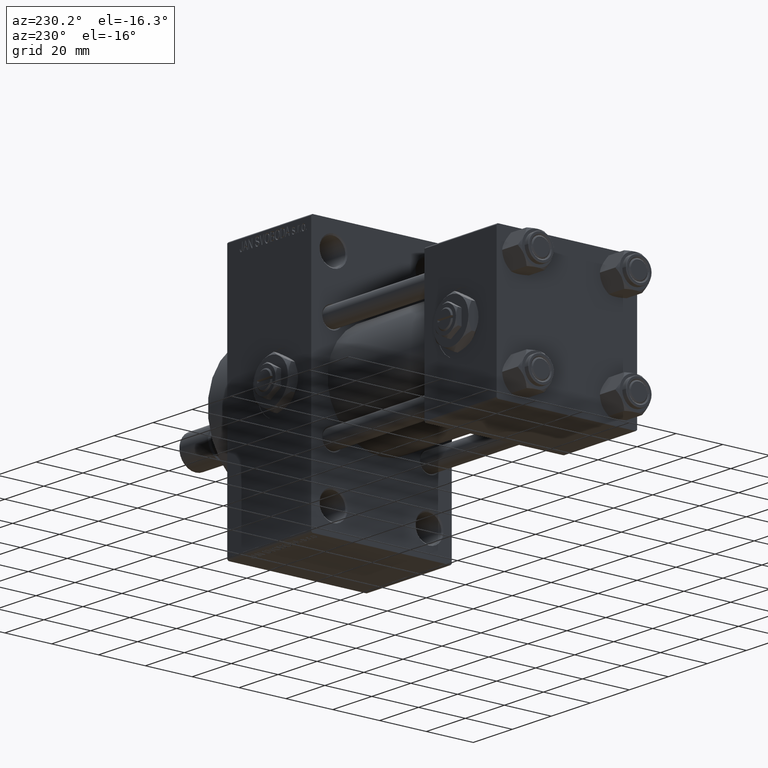
[diagram: clean part render]
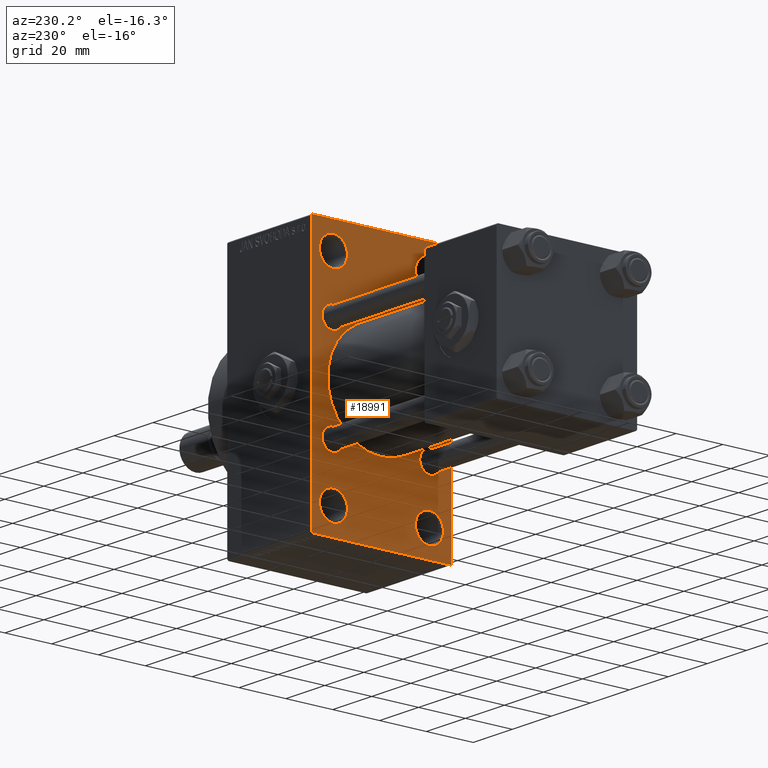
[diagram: same view with one face highlighted and labeled with its STEP entity id]
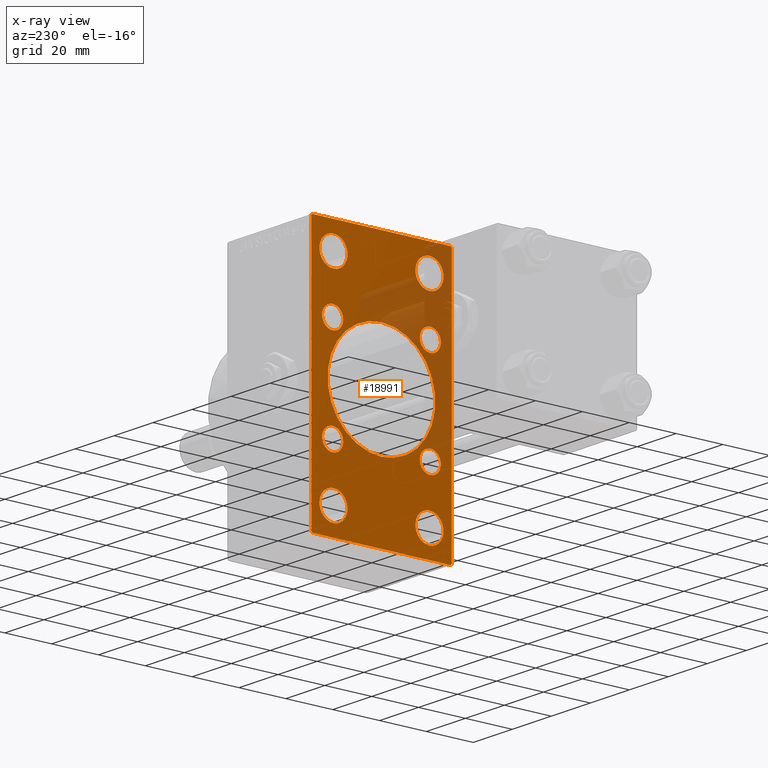
[diagram: x-ray of the same camera — body ghosted, the highlighted face saturated]
A machine part, auxiliary view. The second image highlights one B-rep face of the part: STEP entity #18991.
The next image is the same camera in x-ray: the body ghosted, the highlighted face saturated — about 23% of this face is hidden behind the body in this view.
In plain terms, the highlighted planar face has unit normal (-1, 0, 0).
Its self-contained STEP definition (entity closure, byte-faithful):
#8 = DIRECTION ( 'NONE',  ( 0.000000000000000000, 0.000000000000000000, 1.000000000000000000 ) ) ;
#180 = EDGE_CURVE ( 'NONE', #8354, #1201, #47317, .T. ) ;
#337 = DIRECTION ( 'NONE',  ( 1.000000000000000000, -0.000000000000000000, 0.000000000000000000 ) ) ;
#474 = CARTESIAN_POINT ( 'NONE',  ( 95.00000000000000000, 20.50000000000000000, 43.50000000000000000 ) ) ;
#845 = VERTEX_POINT ( 'NONE', #21036 ) ;
#1201 = VERTEX_POINT ( 'NONE', #30012 ) ;
#1275 = DIRECTION ( 'NONE',  ( 1.000000000000000000, 0.000000000000000000, 0.000000000000000000 ) ) ;
#1900 = VECTOR ( 'NONE', #22817, 1000.000000000000000 ) ;
#2143 = VERTEX_POINT ( 'NONE', #17894 ) ;
#2149 = AXIS2_PLACEMENT_3D ( 'NONE', #30854, #7475, #46218 ) ;
#2241 = LINE ( 'NONE', #7762, #1900 ) ;
#2415 = CIRCLE ( 'NONE', #15218, 4.500000000000007105 ) ;
#2468 = FACE_BOUND ( 'NONE', #6287, .T. ) ;
#2710 = FACE_OUTER_BOUND ( 'NONE', #48149, .T. ) ;
#2769 = EDGE_CURVE ( 'NONE', #3722, #47036, #35436, .T. ) ;
#2938 = DIRECTION ( 'NONE',  ( -0.000000000000000000, -0.7071067811865474617, -0.7071067811865474617 ) ) ;
#3285 = DIRECTION ( 'NONE',  ( 0.000000000000000000, 0.7071067811865279218, -0.7071067811865671127 ) ) ;
#3522 = CARTESIAN_POINT ( 'NONE',  ( 95.00000000000000000, -30.00000000000000000, 53.99999999999997158 ) ) ;
#3662 = CARTESIAN_POINT ( 'NONE',  ( 95.00000000000000000, -30.00000000000000000, 54.50000000000000000 ) ) ;
#3722 = VERTEX_POINT ( 'NONE', #16420 ) ;
#4212 = CARTESIAN_POINT ( 'NONE',  ( 95.00000000000000000, 20.84999999999999787, 25.35000000000000853 ) ) ;
#4233 = ORIENTED_EDGE ( 'NONE', *, *, #7606, .T. ) ;
#4288 = LINE ( 'NONE', #27663, #26833 ) ;
#4481 = ORIENTED_EDGE ( 'NONE', *, *, #16577, .T. ) ;
#4523 = DIRECTION ( 'NONE',  ( 1.000000000000000000, -0.000000000000000000, 0.000000000000000000 ) ) ;
#4592 = VERTEX_POINT ( 'NONE', #23718 ) ;
#5165 = DIRECTION ( 'NONE',  ( 1.000000000000000000, -0.000000000000000000, 0.000000000000000000 ) ) ;
#6124 = CARTESIAN_POINT ( 'NONE',  ( 95.00000000000000000, 20.84999999999999787, -20.85000000000000142 ) ) ;
#6173 = ORIENTED_EDGE ( 'NONE', *, *, #21964, .T. ) ;
#6215 = EDGE_CURVE ( 'NONE', #33620, #45905, #43392, .T. ) ;
#6287 = EDGE_LOOP ( 'NONE', ( #36988, #20143 ) ) ;
#6741 = FACE_BOUND ( 'NONE', #28409, .T. ) ;
#6744 = AXIS2_PLACEMENT_3D ( 'NONE', #15290, #8512, #42502 ) ;
#6812 = VECTOR ( 'NONE', #2938, 1000.000000000000114 ) ;
#6929 = DIRECTION ( 'NONE',  ( 0.000000000000000000, 0.000000000000000000, 1.000000000000000000 ) ) ;
#7002 = EDGE_CURVE ( 'NONE', #845, #31588, #2415, .T. ) ;
#7475 = DIRECTION ( 'NONE',  ( 1.000000000000000000, -0.000000000000000000, 0.000000000000000000 ) ) ;
#7562 = CIRCLE ( 'NONE', #6744, 5.999999999999894307 ) ;
#7564 = LINE ( 'NONE', #15594, #35593 ) ;
#7606 = EDGE_CURVE ( 'NONE', #2143, #45093, #24126, .T. ) ;
#7762 = CARTESIAN_POINT ( 'NONE',  ( 95.00000000000000000, 29.99999999999999645, 54.49999999999999289 ) ) ;
#7984 = DIRECTION ( 'NONE',  ( 0.000000000000000000, 0.000000000000000000, 1.000000000000000000 ) ) ;
#8021 = EDGE_LOOP ( 'NONE', ( #4481, #42124 ) ) ;
#8078 = DIRECTION ( 'NONE',  ( 0.000000000000000000, -1.000000000000000000, -1.156482317317871478E-16 ) ) ;
#8270 = AXIS2_PLACEMENT_3D ( 'NONE', #48724, #41676, #25546 ) ;
#8354 = VERTEX_POINT ( 'NONE', #39575 ) ;
#8512 = DIRECTION ( 'NONE',  ( 1.000000000000000000, -0.000000000000000000, 0.000000000000000000 ) ) ;
#8697 = CARTESIAN_POINT ( 'NONE',  ( 95.00000000000000000, -20.84999999999999076, 20.85000000000000497 ) ) ;
#9630 = ORIENTED_EDGE ( 'NONE', *, *, #45693, .T. ) ;
#10084 = CARTESIAN_POINT ( 'NONE',  ( 95.00000000000000000, 2.146024240737012665E-16, -23.00000000000000000 ) ) ;
#10285 = VERTEX_POINT ( 'NONE', #12006 ) ;
#10531 = DIRECTION ( 'NONE',  ( 0.000000000000000000, 0.000000000000000000, 1.000000000000000000 ) ) ;
#10933 = DIRECTION ( 'NONE',  ( 0.000000000000000000, -0.7071067811865352493, 0.7071067811865597852 ) ) ;
#11070 = CARTESIAN_POINT ( 'NONE',  ( 95.00000000000000000, -20.50000000000000000, 43.50000000000000000 ) ) ;
#11824 = CARTESIAN_POINT ( 'NONE',  ( 95.00000000000000000, -20.50000000000000000, -49.49999999999989342 ) ) ;
#12006 = CARTESIAN_POINT ( 'NONE',  ( 95.00000000000000000, 29.50000000000002132, 54.49999999999999289 ) ) ;
#12160 = VECTOR ( 'NONE', #24433, 1000.000000000000114 ) ;
#13219 = EDGE_CURVE ( 'NONE', #45905, #33620, #40284, .T. ) ;
#13593 = EDGE_CURVE ( 'NONE', #38714, #48609, #26529, .T. ) ;
#13613 = VERTEX_POINT ( 'NONE', #37637 ) ;
#13725 = CARTESIAN_POINT ( 'NONE',  ( 95.00000000000000000, -29.50000000000000355, -54.50000000000000000 ) ) ;
#13751 = EDGE_CURVE ( 'NONE', #38714, #38785, #27966, .T. ) ;
#13945 = VERTEX_POINT ( 'NONE', #34222 ) ;
#14022 = ORIENTED_EDGE ( 'NONE', *, *, #40914, .T. ) ;
#14508 = CARTESIAN_POINT ( 'NONE',  ( 95.00000000000000000, 20.50000000000000000, -43.50000000000000000 ) ) ;
#14711 = CARTESIAN_POINT ( 'NONE',  ( 95.00000000000000000, -42.00000000000051159, -41.99999999999905498 ) ) ;
#14741 = AXIS2_PLACEMENT_3D ( 'NONE', #33651, #34149, #21809 ) ;
#14767 = FACE_BOUND ( 'NONE', #30023, .T. ) ;
#15005 = DIRECTION ( 'NONE',  ( 1.000000000000000000, -0.000000000000000000, 0.000000000000000000 ) ) ;
#15218 = AXIS2_PLACEMENT_3D ( 'NONE', #26019, #19225, #6929 ) ;
#15290 = CARTESIAN_POINT ( 'NONE',  ( 95.00000000000000000, -20.50000000000000000, 43.50000000000000000 ) ) ;
#15440 = CARTESIAN_POINT ( 'NONE',  ( 95.00000000000000000, -20.50000000000000000, 49.49999999999989342 ) ) ;
#15594 = CARTESIAN_POINT ( 'NONE',  ( 95.00000000000000000, 42.00000000000082423, 41.99999999999849365 ) ) ;
#15687 = DIRECTION ( 'NONE',  ( 0.000000000000000000, 0.000000000000000000, 1.000000000000000000 ) ) ;
#15940 = ORIENTED_EDGE ( 'NONE', *, *, #35625, .F. ) ;
#16091 = DIRECTION ( 'NONE',  ( 0.000000000000000000, 0.000000000000000000, 1.000000000000000000 ) ) ;
#16359 = VERTEX_POINT ( 'NONE', #4212 ) ;
#16420 = CARTESIAN_POINT ( 'NONE',  ( 95.00000000000000000, 29.99999999999999645, 53.99999999999999289 ) ) ;
#16577 = EDGE_CURVE ( 'NONE', #4592, #48542, #37177, .T. ) ;
#16806 = CARTESIAN_POINT ( 'NONE',  ( 95.00000000000000000, -20.84999999999999076, -20.85000000000000497 ) ) ;
#17028 = ORIENTED_EDGE ( 'NONE', *, *, #6215, .T. ) ;
#17198 = EDGE_CURVE ( 'NONE', #10285, #3722, #7564, .T. ) ;
#17800 = PLANE ( 'NONE',  #14741 ) ;
#17894 = CARTESIAN_POINT ( 'NONE',  ( 95.00000000000000000, 20.50000000000000000, -37.50000000000009948 ) ) ;
#18076 = CARTESIAN_POINT ( 'NONE',  ( 95.00000000000000000, 29.49999999999999645, -54.49999999999999289 ) ) ;
#18079 = VERTEX_POINT ( 'NONE', #11824 ) ;
#18333 = ORIENTED_EDGE ( 'NONE', *, *, #39960, .T. ) ;
#18512 = ORIENTED_EDGE ( 'NONE', *, *, #29366, .T. ) ;
#18640 = ORIENTED_EDGE ( 'NONE', *, *, #7002, .T. ) ;
#18824 = AXIS2_PLACEMENT_3D ( 'NONE', #20376, #1275, #31470 ) ;
#18991 = ADVANCED_FACE ( 'NONE', ( #41224, #6741, #45239, #37928, #40981, #40732, #2468, #14767, #41472, #2710 ), #17800, .T. ) ;
#19005 = CIRCLE ( 'NONE', #39121, 5.999999999999894307 ) ;
#19061 = EDGE_LOOP ( 'NONE', ( #4233, #9630 ) ) ;
#19225 = DIRECTION ( 'NONE',  ( 1.000000000000000000, -0.000000000000000000, 0.000000000000000000 ) ) ;
#19285 = CARTESIAN_POINT ( 'NONE',  ( 95.00000000000000000, 29.99999999999999645, -53.99999999999999289 ) ) ;
#19545 = DIRECTION ( 'NONE',  ( 0.000000000000000000, 0.000000000000000000, 1.000000000000000000 ) ) ;
#19611 = AXIS2_PLACEMENT_3D ( 'NONE', #8697, #5165, #20491 ) ;
#19835 = VERTEX_POINT ( 'NONE', #13725 ) ;
#20086 = DIRECTION ( 'NONE',  ( 1.000000000000000000, -0.000000000000000000, 0.000000000000000000 ) ) ;
#20107 = EDGE_CURVE ( 'NONE', #31662, #18079, #27626, .T. ) ;
#20143 = ORIENTED_EDGE ( 'NONE', *, *, #43199, .T. ) ;
#20376 = CARTESIAN_POINT ( 'NONE',  ( 95.00000000000000000, -2.602085213965210642E-15, 0.000000000000000000 ) ) ;
#20491 = DIRECTION ( 'NONE',  ( 0.000000000000000000, 0.000000000000000000, 1.000000000000000000 ) ) ;
#20714 = EDGE_CURVE ( 'NONE', #41210, #19835, #4288, .T. ) ;
#20816 = DIRECTION ( 'NONE',  ( 0.000000000000000000, 0.000000000000000000, 1.000000000000000000 ) ) ;
#21036 = CARTESIAN_POINT ( 'NONE',  ( 95.00000000000000000, -20.84999999999999076, -16.34999999999999787 ) ) ;
#21174 = ORIENTED_EDGE ( 'NONE', *, *, #20107, .T. ) ;
#21652 = EDGE_CURVE ( 'NONE', #48542, #4592, #46992, .T. ) ;
#21655 = VECTOR ( 'NONE', #31410, 1000.000000000000000 ) ;
#21809 = DIRECTION ( 'NONE',  ( -0.000000000000000000, 0.000000000000000000, 1.000000000000000000 ) ) ;
#21964 = EDGE_CURVE ( 'NONE', #16359, #13945, #34148, .T. ) ;
#22177 = EDGE_CURVE ( 'NONE', #47036, #41210, #37418, .T. ) ;
#22384 = DIRECTION ( 'NONE',  ( 0.000000000000000000, 0.000000000000000000, 1.000000000000000000 ) ) ;
#22817 = DIRECTION ( 'NONE',  ( 0.000000000000000000, -1.000000000000000000, 1.156482317317871478E-16 ) ) ;
#22836 = VECTOR ( 'NONE', #10933, 1000.000000000000000 ) ;
#23369 = CARTESIAN_POINT ( 'NONE',  ( 95.00000000000000000, 20.50000000000000000, -43.50000000000000000 ) ) ;
#23586 = ORIENTED_EDGE ( 'NONE', *, *, #13593, .F. ) ;
#23718 = CARTESIAN_POINT ( 'NONE',  ( 95.00000000000000000, -2.602085213965210642E-15, 23.00000000000000000 ) ) ;
#23990 = CARTESIAN_POINT ( 'NONE',  ( 95.00000000000000000, -20.84999999999999076, -25.35000000000001208 ) ) ;
#24126 = CIRCLE ( 'NONE', #24906, 5.999999999999894307 ) ;
#24433 = DIRECTION ( 'NONE',  ( -0.000000000000000000, 0.7071067811865451302, 0.7071067811865500152 ) ) ;
#24463 = AXIS2_PLACEMENT_3D ( 'NONE', #38016, #42051, #22384 ) ;
#24679 = CARTESIAN_POINT ( 'NONE',  ( 95.00000000000000000, -42.00000000000008527, 41.99999999999979394 ) ) ;
#24736 = DIRECTION ( 'NONE',  ( 0.000000000000000000, 0.000000000000000000, 1.000000000000000000 ) ) ;
#24906 = AXIS2_PLACEMENT_3D ( 'NONE', #23369, #4523, #16091 ) ;
#25011 = VECTOR ( 'NONE', #30066, 1000.000000000000000 ) ;
#25035 = CARTESIAN_POINT ( 'NONE',  ( 95.00000000000000000, 20.50000000000000000, 49.49999999999989342 ) ) ;
#25546 = DIRECTION ( 'NONE',  ( 0.000000000000000000, 0.000000000000000000, -1.000000000000000000 ) ) ;
#26019 = CARTESIAN_POINT ( 'NONE',  ( 95.00000000000000000, -20.84999999999999076, -20.85000000000000497 ) ) ;
#26529 = LINE ( 'NONE', #3662, #25011 ) ;
#26617 = CARTESIAN_POINT ( 'NONE',  ( 95.00000000000000000, -20.50000000000000000, -43.50000000000000000 ) ) ;
#26833 = VECTOR ( 'NONE', #8078, 1000.000000000000000 ) ;
#27626 = CIRCLE ( 'NONE', #47749, 5.999999999999894307 ) ;
#27663 = CARTESIAN_POINT ( 'NONE',  ( 95.00000000000000000, 29.99999999999999645, -54.49999999999999289 ) ) ;
#27966 = LINE ( 'NONE', #24679, #12160 ) ;
#28409 = EDGE_LOOP ( 'NONE', ( #21174, #47517 ) ) ;
#28494 = AXIS2_PLACEMENT_3D ( 'NONE', #30156, #41757, #42258 ) ;
#29142 = EDGE_CURVE ( 'NONE', #18079, #31662, #19005, .T. ) ;
#29366 = EDGE_CURVE ( 'NONE', #31588, #845, #29452, .T. ) ;
#29452 = CIRCLE ( 'NONE', #49552, 4.500000000000007105 ) ;
#29849 = CARTESIAN_POINT ( 'NONE',  ( 95.00000000000000000, 41.99999999999998579, -41.99999999999998579 ) ) ;
#30012 = CARTESIAN_POINT ( 'NONE',  ( 95.00000000000000000, 20.84999999999999787, -25.35000000000000853 ) ) ;
#30023 = EDGE_LOOP ( 'NONE', ( #18640, #18512 ) ) ;
#30066 = DIRECTION ( 'NONE',  ( 0.000000000000000000, 0.000000000000000000, -1.000000000000000000 ) ) ;
#30156 = CARTESIAN_POINT ( 'NONE',  ( 95.00000000000000000, 20.84999999999999787, 20.85000000000000142 ) ) ;
#30540 = ORIENTED_EDGE ( 'NONE', *, *, #39566, .T. ) ;
#30729 = VERTEX_POINT ( 'NONE', #15440 ) ;
#30846 = CARTESIAN_POINT ( 'NONE',  ( 95.00000000000000000, -20.84999999999999076, 16.34999999999999787 ) ) ;
#30854 = CARTESIAN_POINT ( 'NONE',  ( 95.00000000000000000, -20.84999999999999076, 20.85000000000000497 ) ) ;
#30901 = CARTESIAN_POINT ( 'NONE',  ( 95.00000000000000000, 29.99999999999999645, 54.49999999999999289 ) ) ;
#30919 = DIRECTION ( 'NONE',  ( 0.000000000000000000, 0.000000000000000000, 1.000000000000000000 ) ) ;
#31410 = DIRECTION ( 'NONE',  ( 0.000000000000000000, 0.000000000000000000, -1.000000000000000000 ) ) ;
#31470 = DIRECTION ( 'NONE',  ( 0.000000000000000000, 0.000000000000000000, -1.000000000000000000 ) ) ;
#31588 = VERTEX_POINT ( 'NONE', #23990 ) ;
#31652 = EDGE_LOOP ( 'NONE', ( #17028, #39533 ) ) ;
#31662 = VERTEX_POINT ( 'NONE', #48890 ) ;
#31736 = VERTEX_POINT ( 'NONE', #45360 ) ;
#32158 = DIRECTION ( 'NONE',  ( 1.000000000000000000, -0.000000000000000000, 0.000000000000000000 ) ) ;
#32287 = ORIENTED_EDGE ( 'NONE', *, *, #2769, .T. ) ;
#32452 = AXIS2_PLACEMENT_3D ( 'NONE', #11070, #34480, #8 ) ;
#33025 = DIRECTION ( 'NONE',  ( 1.000000000000000000, -0.000000000000000000, 0.000000000000000000 ) ) ;
#33418 = AXIS2_PLACEMENT_3D ( 'NONE', #6124, #33025, #48386 ) ;
#33437 = ORIENTED_EDGE ( 'NONE', *, *, #20714, .T. ) ;
#33620 = VERTEX_POINT ( 'NONE', #25035 ) ;
#33651 = CARTESIAN_POINT ( 'NONE',  ( 95.00000000000000000, 0.000000000000000000, 0.000000000000000000 ) ) ;
#33828 = AXIS2_PLACEMENT_3D ( 'NONE', #34911, #38701, #19545 ) ;
#33919 = EDGE_LOOP ( 'NONE', ( #30540, #18333 ) ) ;
#34148 = CIRCLE ( 'NONE', #28494, 4.500000000000007105 ) ;
#34149 = DIRECTION ( 'NONE',  ( -1.000000000000000000, 0.000000000000000000, -0.000000000000000000 ) ) ;
#34222 = CARTESIAN_POINT ( 'NONE',  ( 95.00000000000000000, 20.84999999999999787, 16.34999999999999432 ) ) ;
#34480 = DIRECTION ( 'NONE',  ( 1.000000000000000000, -0.000000000000000000, 0.000000000000000000 ) ) ;
#34815 = CARTESIAN_POINT ( 'NONE',  ( 95.00000000000000000, 20.84999999999999787, -20.85000000000000142 ) ) ;
#34911 = CARTESIAN_POINT ( 'NONE',  ( 95.00000000000000000, 20.50000000000000000, 43.50000000000000000 ) ) ;
#35011 = CIRCLE ( 'NONE', #33418, 4.500000000000007105 ) ;
#35181 = EDGE_LOOP ( 'NONE', ( #46005, #48003 ) ) ;
#35436 = LINE ( 'NONE', #30901, #21655 ) ;
#35593 = VECTOR ( 'NONE', #3285, 1000.000000000000000 ) ;
#35625 = EDGE_CURVE ( 'NONE', #10285, #38785, #2241, .T. ) ;
#35632 = ORIENTED_EDGE ( 'NONE', *, *, #13751, .T. ) ;
#35915 = CIRCLE ( 'NONE', #2149, 4.500000000000007105 ) ;
#35994 = ORIENTED_EDGE ( 'NONE', *, *, #22177, .T. ) ;
#36988 = ORIENTED_EDGE ( 'NONE', *, *, #180, .T. ) ;
#37177 = CIRCLE ( 'NONE', #8270, 23.00000000000000000 ) ;
#37418 = LINE ( 'NONE', #29849, #6812 ) ;
#37635 = AXIS2_PLACEMENT_3D ( 'NONE', #34815, #337, #15687 ) ;
#37637 = CARTESIAN_POINT ( 'NONE',  ( 95.00000000000000000, -20.50000000000000000, 37.50000000000009948 ) ) ;
#37928 = FACE_BOUND ( 'NONE', #31652, .T. ) ;
#38009 = EDGE_CURVE ( 'NONE', #19835, #48609, #49201, .T. ) ;
#38016 = CARTESIAN_POINT ( 'NONE',  ( 95.00000000000000000, 20.84999999999999787, 20.85000000000000142 ) ) ;
#38135 = CIRCLE ( 'NONE', #19611, 4.500000000000007105 ) ;
#38556 = AXIS2_PLACEMENT_3D ( 'NONE', #474, #20086, #30919 ) ;
#38701 = DIRECTION ( 'NONE',  ( 1.000000000000000000, -0.000000000000000000, 0.000000000000000000 ) ) ;
#38714 = VERTEX_POINT ( 'NONE', #3522 ) ;
#38785 = VERTEX_POINT ( 'NONE', #43486 ) ;
#39013 = CARTESIAN_POINT ( 'NONE',  ( 95.00000000000000000, -30.00000000000000000, -53.99999999999998579 ) ) ;
#39118 = CIRCLE ( 'NONE', #48769, 5.999999999999894307 ) ;
#39121 = AXIS2_PLACEMENT_3D ( 'NONE', #26617, #49795, #10531 ) ;
#39533 = ORIENTED_EDGE ( 'NONE', *, *, #13219, .T. ) ;
#39566 = EDGE_CURVE ( 'NONE', #30729, #13613, #39737, .T. ) ;
#39575 = CARTESIAN_POINT ( 'NONE',  ( 95.00000000000000000, 20.84999999999999787, -16.34999999999999432 ) ) ;
#39737 = CIRCLE ( 'NONE', #32452, 5.999999999999894307 ) ;
#39768 = CIRCLE ( 'NONE', #24463, 4.500000000000007105 ) ;
#39960 = EDGE_CURVE ( 'NONE', #13613, #30729, #7562, .T. ) ;
#40284 = CIRCLE ( 'NONE', #33828, 5.999999999999894307 ) ;
#40372 = DIRECTION ( 'NONE',  ( 1.000000000000000000, -0.000000000000000000, 0.000000000000000000 ) ) ;
#40732 = FACE_BOUND ( 'NONE', #48927, .T. ) ;
#40865 = EDGE_CURVE ( 'NONE', #31736, #44850, #38135, .T. ) ;
#40914 = EDGE_CURVE ( 'NONE', #13945, #16359, #39768, .T. ) ;
#40981 = FACE_BOUND ( 'NONE', #35181, .T. ) ;
#41210 = VERTEX_POINT ( 'NONE', #18076 ) ;
#41224 = FACE_BOUND ( 'NONE', #33919, .T. ) ;
#41472 = FACE_BOUND ( 'NONE', #8021, .T. ) ;
#41676 = DIRECTION ( 'NONE',  ( 1.000000000000000000, 0.000000000000000000, 0.000000000000000000 ) ) ;
#41757 = DIRECTION ( 'NONE',  ( 1.000000000000000000, -0.000000000000000000, 0.000000000000000000 ) ) ;
#42051 = DIRECTION ( 'NONE',  ( 1.000000000000000000, -0.000000000000000000, 0.000000000000000000 ) ) ;
#42124 = ORIENTED_EDGE ( 'NONE', *, *, #21652, .T. ) ;
#42258 = DIRECTION ( 'NONE',  ( 0.000000000000000000, 0.000000000000000000, 1.000000000000000000 ) ) ;
#42502 = DIRECTION ( 'NONE',  ( 0.000000000000000000, 0.000000000000000000, 1.000000000000000000 ) ) ;
#43182 = ORIENTED_EDGE ( 'NONE', *, *, #38009, .T. ) ;
#43199 = EDGE_CURVE ( 'NONE', #1201, #8354, #35011, .T. ) ;
#43369 = ORIENTED_EDGE ( 'NONE', *, *, #17198, .T. ) ;
#43392 = CIRCLE ( 'NONE', #38556, 5.999999999999894307 ) ;
#43486 = CARTESIAN_POINT ( 'NONE',  ( 95.00000000000000000, -29.49999999999997513, 54.50000000000000000 ) ) ;
#43904 = CARTESIAN_POINT ( 'NONE',  ( 95.00000000000000000, -20.50000000000000000, -43.50000000000000000 ) ) ;
#44850 = VERTEX_POINT ( 'NONE', #30846 ) ;
#45093 = VERTEX_POINT ( 'NONE', #47589 ) ;
#45239 = FACE_BOUND ( 'NONE', #19061, .T. ) ;
#45360 = CARTESIAN_POINT ( 'NONE',  ( 95.00000000000000000, -20.84999999999999076, 25.35000000000001208 ) ) ;
#45604 = EDGE_CURVE ( 'NONE', #44850, #31736, #35915, .T. ) ;
#45693 = EDGE_CURVE ( 'NONE', #45093, #2143, #39118, .T. ) ;
#45905 = VERTEX_POINT ( 'NONE', #48700 ) ;
#46005 = ORIENTED_EDGE ( 'NONE', *, *, #40865, .T. ) ;
#46218 = DIRECTION ( 'NONE',  ( 0.000000000000000000, 0.000000000000000000, 1.000000000000000000 ) ) ;
#46992 = CIRCLE ( 'NONE', #18824, 23.00000000000000000 ) ;
#47036 = VERTEX_POINT ( 'NONE', #19285 ) ;
#47317 = CIRCLE ( 'NONE', #37635, 4.500000000000007105 ) ;
#47517 = ORIENTED_EDGE ( 'NONE', *, *, #29142, .T. ) ;
#47589 = CARTESIAN_POINT ( 'NONE',  ( 95.00000000000000000, 20.50000000000000000, -49.49999999999989342 ) ) ;
#47749 = AXIS2_PLACEMENT_3D ( 'NONE', #43904, #40372, #24736 ) ;
#48003 = ORIENTED_EDGE ( 'NONE', *, *, #45604, .T. ) ;
#48149 = EDGE_LOOP ( 'NONE', ( #33437, #43182, #23586, #35632, #15940, #43369, #32287, #35994 ) ) ;
#48386 = DIRECTION ( 'NONE',  ( 0.000000000000000000, 0.000000000000000000, 1.000000000000000000 ) ) ;
#48542 = VERTEX_POINT ( 'NONE', #10084 ) ;
#48609 = VERTEX_POINT ( 'NONE', #39013 ) ;
#48700 = CARTESIAN_POINT ( 'NONE',  ( 95.00000000000000000, 20.50000000000000000, 37.50000000000009948 ) ) ;
#48724 = CARTESIAN_POINT ( 'NONE',  ( 95.00000000000000000, -2.602085213965210642E-15, 0.000000000000000000 ) ) ;
#48769 = AXIS2_PLACEMENT_3D ( 'NONE', #14508, #15005, #7984 ) ;
#48890 = CARTESIAN_POINT ( 'NONE',  ( 95.00000000000000000, -20.50000000000000000, -37.50000000000009948 ) ) ;
#48927 = EDGE_LOOP ( 'NONE', ( #6173, #14022 ) ) ;
#49201 = LINE ( 'NONE', #14711, #22836 ) ;
#49552 = AXIS2_PLACEMENT_3D ( 'NONE', #16806, #32158, #20816 ) ;
#49795 = DIRECTION ( 'NONE',  ( 1.000000000000000000, -0.000000000000000000, 0.000000000000000000 ) ) ;